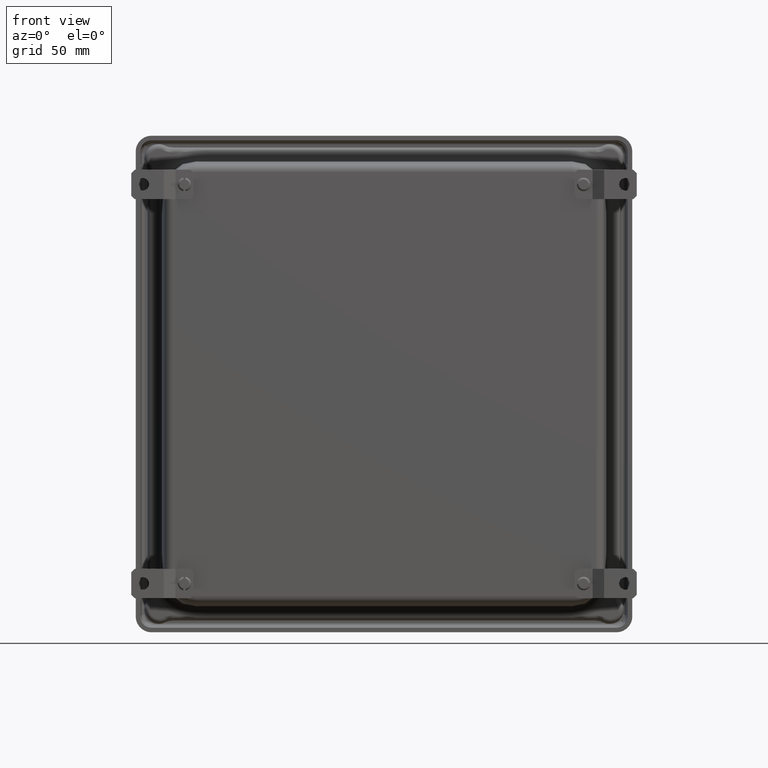
[diagram: clean part render]
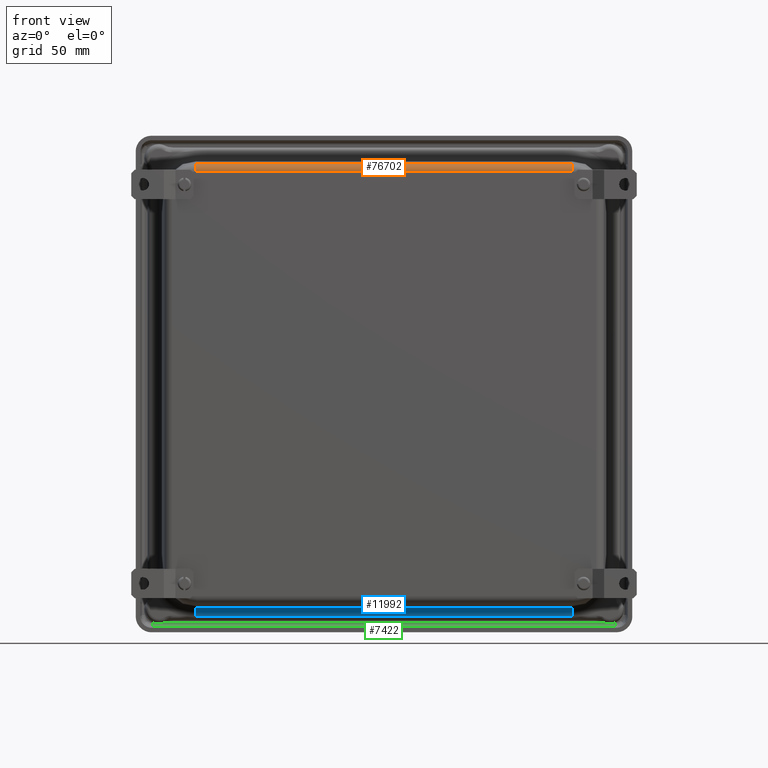
[diagram: same view with three faces highlighted in distinct colors, each labeled with its STEP entity id]
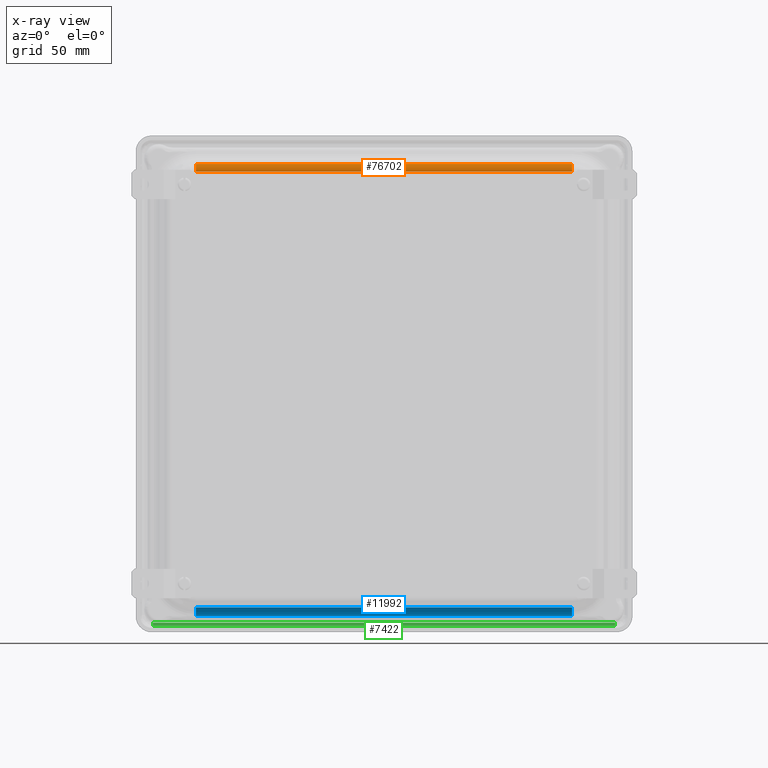
[diagram: x-ray of the same camera — body ghosted, the three highlighted faces saturated]
A machine part, front view with three faces highlighted in distinct colors.
The next image is the same camera in x-ray (body ghosted, the three faces saturated) — at least one of them is partly hidden behind the body in this view.
Their STEP definitions:

[orange] entity #76702 — the highlighted cylindrical surface (edge-blend (fillet) strip) has radius 5.5626 mm, axis along (1, 0, -0).
#1734 = CYLINDRICAL_SURFACE ( 'NONE', #31831, 0.2190000000000000300 ) ;
#3333 = LINE ( 'NONE', #17803, #27262 ) ;
#7529 = AXIS2_PLACEMENT_3D ( 'NONE', #60334, #8409, #27632 ) ;
#8409 = DIRECTION ( 'NONE',  ( 1.000000000000000000, 0.0000000000000000000, 0.0000000000000000000 ) ) ;
#9788 = CARTESIAN_POINT ( 'NONE',  ( 5.198999999999999800, -4.125000000000000000, 5.860558715286005700 ) ) ;
#11029 = VERTEX_POINT ( 'NONE', #76137 ) ;
#11982 = DIRECTION ( 'NONE',  ( 0.0000000000000000000, 0.0000000000000000000, -1.000000000000000000 ) ) ;
#12792 = DIRECTION ( 'NONE',  ( 1.000000000000000000, 0.0000000000000000000, 0.0000000000000000000 ) ) ;
#17259 = DIRECTION ( 'NONE',  ( -1.000000000000000000, -0.0000000000000000000, 2.101825730843826600E-016 ) ) ;
#17803 = CARTESIAN_POINT ( 'NONE',  ( 5.198999999999999800, -4.125000000000000000, 5.860558715286005700 ) ) ;
#18635 = ORIENTED_EDGE ( 'NONE', *, *, #24288, .T. ) ;
#19201 = DIRECTION ( 'NONE',  ( 0.0000000000000000000, 0.0000000000000000000, -1.000000000000000000 ) ) ;
#20403 = VERTEX_POINT ( 'NONE', #23858 ) ;
#21417 = CARTESIAN_POINT ( 'NONE',  ( 5.198999999999999800, -3.912687934392951500, 6.079456571679245700 ) ) ;
#23255 = ORIENTED_EDGE ( 'NONE', *, *, #26892, .F. ) ;
#23858 = CARTESIAN_POINT ( 'NONE',  ( -5.198999999999999800, -4.125000000000000000, 5.860558715286007500 ) ) ;
#24288 = EDGE_CURVE ( 'NONE', #11029, #20403, #76559, .T. ) ;
#26892 = EDGE_CURVE ( 'NONE', #62419, #61879, #65029, .T. ) ;
#27262 = VECTOR ( 'NONE', #17259, 39.37007874015748100 ) ;
#27632 = DIRECTION ( 'NONE',  ( 0.0000000000000000000, 0.0000000000000000000, -1.000000000000000000 ) ) ;
#31831 = AXIS2_PLACEMENT_3D ( 'NONE', #50505, #49706, #11982 ) ;
#32340 = DIRECTION ( 'NONE',  ( 1.000000000000000000, -3.593085495644085600E-037, -2.101825730843826400E-016 ) ) ;
#34427 = AXIS2_PLACEMENT_3D ( 'NONE', #63635, #12792, #19201 ) ;
#34718 = VECTOR ( 'NONE', #32340, 39.37007874015748100 ) ;
#49706 = DIRECTION ( 'NONE',  ( 1.000000000000000000, 0.0000000000000000000, -2.101825730843826600E-016 ) ) ;
#50505 = CARTESIAN_POINT ( 'NONE',  ( -5.198999999999999800, -3.905999999999999700, 5.860558715286007500 ) ) ;
#51048 = CARTESIAN_POINT ( 'NONE',  ( -5.198999999999999800, -3.912687934392951000, 6.079456571679248400 ) ) ;
#51227 = ORIENTED_EDGE ( 'NONE', *, *, #76772, .F. ) ;
#60334 = CARTESIAN_POINT ( 'NONE',  ( -5.198999999999999800, -3.905999999999999700, 5.860558715286007500 ) ) ;
#61879 = VERTEX_POINT ( 'NONE', #9788 ) ;
#62419 = VERTEX_POINT ( 'NONE', #21417 ) ;
#63495 = ORIENTED_EDGE ( 'NONE', *, *, #80641, .F. ) ;
#63635 = CARTESIAN_POINT ( 'NONE',  ( 5.198999999999999800, -3.905999999999999700, 5.860558715286005700 ) ) ;
#65029 = CIRCLE ( 'NONE', #34427, 0.2190000000000000300 ) ;
#76137 = CARTESIAN_POINT ( 'NONE',  ( -5.198999999999999800, -3.912687934392951500, 6.079456571679248400 ) ) ;
#76559 = CIRCLE ( 'NONE', #7529, 0.2190000000000000300 ) ;
#76702 = ADVANCED_FACE ( 'NONE', ( #80682 ), #1734, .T. ) ;
#76772 = EDGE_CURVE ( 'NONE', #11029, #62419, #81706, .T. ) ;
#80641 = EDGE_CURVE ( 'NONE', #61879, #20403, #3333, .T. ) ;
#80682 = FACE_OUTER_BOUND ( 'NONE', #82203, .T. ) ;
#81706 = LINE ( 'NONE', #51048, #34718 ) ;
#82203 = EDGE_LOOP ( 'NONE', ( #18635, #63495, #23255, #51227 ) ) ;

[blue] entity #11992 — the highlighted cylindrical surface (edge-blend (fillet) strip) has radius 7.9248 mm, axis along (-1, 0, -0).
#2433 = CARTESIAN_POINT ( 'NONE',  ( 5.198999999999999000, -0.6002783338071844300, -6.421189083935123800 ) ) ;
#2560 = ORIENTED_EDGE ( 'NONE', *, *, #25666, .T. ) ;
#4231 = ORIENTED_EDGE ( 'NONE', *, *, #34893, .F. ) ;
#4537 = DIRECTION ( 'NONE',  ( 1.000000000000000000, -1.796542747822042800E-037, 1.050912865421913300E-016 ) ) ;
#5127 = LINE ( 'NONE', #74364, #42037 ) ;
#6727 = DIRECTION ( 'NONE',  ( -1.000000000000000000, 0.0000000000000000000, 0.0000000000000000000 ) ) ;
#8406 = CIRCLE ( 'NONE', #42790, 0.3120000000000003900 ) ;
#11970 = DIRECTION ( 'NONE',  ( -1.000000000000000000, 0.0000000000000000000, 0.0000000000000000000 ) ) ;
#11992 = ADVANCED_FACE ( 'NONE', ( #18289 ), #72265, .F. ) ;
#12683 = CARTESIAN_POINT ( 'NONE',  ( -5.198999999999999000, -0.8964719838785354400, -6.171610303672742300 ) ) ;
#13056 = CARTESIAN_POINT ( 'NONE',  ( -5.198999999999999000, -0.9060000000000000300, -6.483464784013797600 ) ) ;
#17745 = DIRECTION ( 'NONE',  ( 0.0000000000000000000, 0.0000000000000000000, 1.000000000000000000 ) ) ;
#18289 = FACE_OUTER_BOUND ( 'NONE', #50175, .T. ) ;
#19520 = CARTESIAN_POINT ( 'NONE',  ( 5.198999999999999000, -0.9060000000000000300, -6.483464784013795800 ) ) ;
#23326 = CARTESIAN_POINT ( 'NONE',  ( 5.198999999999999000, -0.9060000000000000300, -6.483464784013795800 ) ) ;
#25666 = EDGE_CURVE ( 'NONE', #80071, #50052, #60171, .T. ) ;
#31636 = ORIENTED_EDGE ( 'NONE', *, *, #82712, .F. ) ;
#34893 = EDGE_CURVE ( 'NONE', #75896, #47661, #5127, .T. ) ;
#36974 = DIRECTION ( 'NONE',  ( -1.000000000000000000, 0.0000000000000000000, -1.050912865421913600E-016 ) ) ;
#37416 = AXIS2_PLACEMENT_3D ( 'NONE', #19520, #6727, #44106 ) ;
#38430 = DIRECTION ( 'NONE',  ( 0.0000000000000000000, 0.0000000000000000000, 1.000000000000000000 ) ) ;
#41261 = CARTESIAN_POINT ( 'NONE',  ( -5.198999999999999000, -0.6002783338071847600, -6.421189083935124700 ) ) ;
#42037 = VECTOR ( 'NONE', #4537, 39.37007874015748100 ) ;
#42790 = AXIS2_PLACEMENT_3D ( 'NONE', #13056, #11970, #38430 ) ;
#44106 = DIRECTION ( 'NONE',  ( 0.0000000000000000000, 0.0000000000000000000, 1.000000000000000000 ) ) ;
#47661 = VERTEX_POINT ( 'NONE', #60086 ) ;
#50052 = VERTEX_POINT ( 'NONE', #60497 ) ;
#50175 = EDGE_LOOP ( 'NONE', ( #50330, #2560, #31636, #4231 ) ) ;
#50330 = ORIENTED_EDGE ( 'NONE', *, *, #66800, .T. ) ;
#55016 = AXIS2_PLACEMENT_3D ( 'NONE', #23326, #36974, #17745 ) ;
#56019 = CIRCLE ( 'NONE', #37416, 0.3120000000000003900 ) ;
#60086 = CARTESIAN_POINT ( 'NONE',  ( 5.198999999999999000, -0.8964719838785354400, -6.171610303672742300 ) ) ;
#60171 = LINE ( 'NONE', #2433, #61198 ) ;
#60497 = CARTESIAN_POINT ( 'NONE',  ( 5.198999999999999000, -0.6002783338071843200, -6.421189083935124700 ) ) ;
#61198 = VECTOR ( 'NONE', #78145, 39.37007874015748100 ) ;
#66800 = EDGE_CURVE ( 'NONE', #75896, #80071, #8406, .T. ) ;
#72265 = CYLINDRICAL_SURFACE ( 'NONE', #55016, 0.3120000000000003900 ) ;
#74364 = CARTESIAN_POINT ( 'NONE',  ( 5.198999999999999000, -0.8964719838785353300, -6.171610303672741400 ) ) ;
#75896 = VERTEX_POINT ( 'NONE', #12683 ) ;
#78145 = DIRECTION ( 'NONE',  ( 1.000000000000000000, -0.0000000000000000000, 1.050912865421913600E-016 ) ) ;
#80071 = VERTEX_POINT ( 'NONE', #41261 ) ;
#82712 = EDGE_CURVE ( 'NONE', #47661, #50052, #56019, .T. ) ;

[green] entity #7422 — the highlighted cylindrical surface (edge-blend (fillet) strip) has radius 2.3876 mm, axis along (1, -0, -0).
#7119 = CIRCLE ( 'NONE', #40785, 0.09400000000000001400 ) ;
#7422 = ADVANCED_FACE ( 'NONE', ( #71659 ), #58697, .F. ) ;
#7648 = CARTESIAN_POINT ( 'NONE',  ( 6.600293058399229200, -6.382591819822733800, -0.8649999999999998800 ) ) ;
#8224 = EDGE_CURVE ( 'NONE', #71142, #28875, #47702, .T. ) ;
#8532 = CIRCLE ( 'NONE', #80320, 0.09400000000000001400 ) ;
#11796 = LINE ( 'NONE', #31619, #69750 ) ;
#11890 = CARTESIAN_POINT ( 'NONE',  ( 6.600293058399227400, 0.0000000000000000000, -0.7709999999999999100 ) ) ;
#13482 = CARTESIAN_POINT ( 'NONE',  ( 6.694164234666159200, 6.382591819822735600, -0.7759195798868369100 ) ) ;
#17734 = EDGE_LOOP ( 'NONE', ( #75162, #74217, #28588, #58165 ) ) ;
#19115 = DIRECTION ( 'NONE',  ( 0.0000000000000000000, 1.000000000000000000, 0.0000000000000000000 ) ) ;
#21238 = CARTESIAN_POINT ( 'NONE',  ( 6.694164234666160100, -6.382591819822733800, -0.7759195798868368000 ) ) ;
#22851 = VERTEX_POINT ( 'NONE', #13482 ) ;
#24820 = EDGE_CURVE ( 'NONE', #71142, #39907, #8532, .T. ) ;
#27660 = CARTESIAN_POINT ( 'NONE',  ( 6.600293058399227400, 6.382591819822735600, -0.8649999999999998800 ) ) ;
#28588 = ORIENTED_EDGE ( 'NONE', *, *, #59827, .F. ) ;
#28863 = EDGE_CURVE ( 'NONE', #22851, #39907, #11796, .T. ) ;
#28875 = VERTEX_POINT ( 'NONE', #27660 ) ;
#31619 = CARTESIAN_POINT ( 'NONE',  ( 6.694164234666158300, -6.859999999999999400, -0.7759195798868368000 ) ) ;
#36447 = CARTESIAN_POINT ( 'NONE',  ( 6.600293058399229200, -6.382591819822733800, -0.7709999999999999100 ) ) ;
#39907 = VERTEX_POINT ( 'NONE', #21238 ) ;
#40785 = AXIS2_PLACEMENT_3D ( 'NONE', #48274, #54709, #73968 ) ;
#46389 = DIRECTION ( 'NONE',  ( -0.0000000000000000000, -1.000000000000000000, -0.0000000000000000000 ) ) ;
#46922 = CARTESIAN_POINT ( 'NONE',  ( 6.600293058399227400, 0.0000000000000000000, -0.8649999999999998800 ) ) ;
#47702 = LINE ( 'NONE', #46922, #54697 ) ;
#48274 = CARTESIAN_POINT ( 'NONE',  ( 6.600293058399227400, 6.382591819822735600, -0.7709999999999999100 ) ) ;
#49611 = DIRECTION ( 'NONE',  ( 0.0000000000000000000, 0.0000000000000000000, -1.000000000000000000 ) ) ;
#54697 = VECTOR ( 'NONE', #72079, 39.37007874015748100 ) ;
#54709 = DIRECTION ( 'NONE',  ( 0.0000000000000000000, -1.000000000000000000, 0.0000000000000000000 ) ) ;
#57541 = AXIS2_PLACEMENT_3D ( 'NONE', #11890, #19115, #63547 ) ;
#58165 = ORIENTED_EDGE ( 'NONE', *, *, #8224, .F. ) ;
#58697 = CYLINDRICAL_SURFACE ( 'NONE', #57541, 0.09400000000000001400 ) ;
#59827 = EDGE_CURVE ( 'NONE', #28875, #22851, #7119, .T. ) ;
#63547 = DIRECTION ( 'NONE',  ( 0.0000000000000000000, 0.0000000000000000000, 1.000000000000000000 ) ) ;
#69750 = VECTOR ( 'NONE', #46389, 39.37007874015748100 ) ;
#71142 = VERTEX_POINT ( 'NONE', #7648 ) ;
#71659 = FACE_OUTER_BOUND ( 'NONE', #17734, .T. ) ;
#72079 = DIRECTION ( 'NONE',  ( 0.0000000000000000000, 1.000000000000000000, 0.0000000000000000000 ) ) ;
#73968 = DIRECTION ( 'NONE',  ( 0.0000000000000000000, 0.0000000000000000000, -1.000000000000000000 ) ) ;
#74217 = ORIENTED_EDGE ( 'NONE', *, *, #28863, .F. ) ;
#75162 = ORIENTED_EDGE ( 'NONE', *, *, #24820, .T. ) ;
#80320 = AXIS2_PLACEMENT_3D ( 'NONE', #36447, #81454, #49611 ) ;
#81454 = DIRECTION ( 'NONE',  ( 0.0000000000000000000, -1.000000000000000000, 0.0000000000000000000 ) ) ;